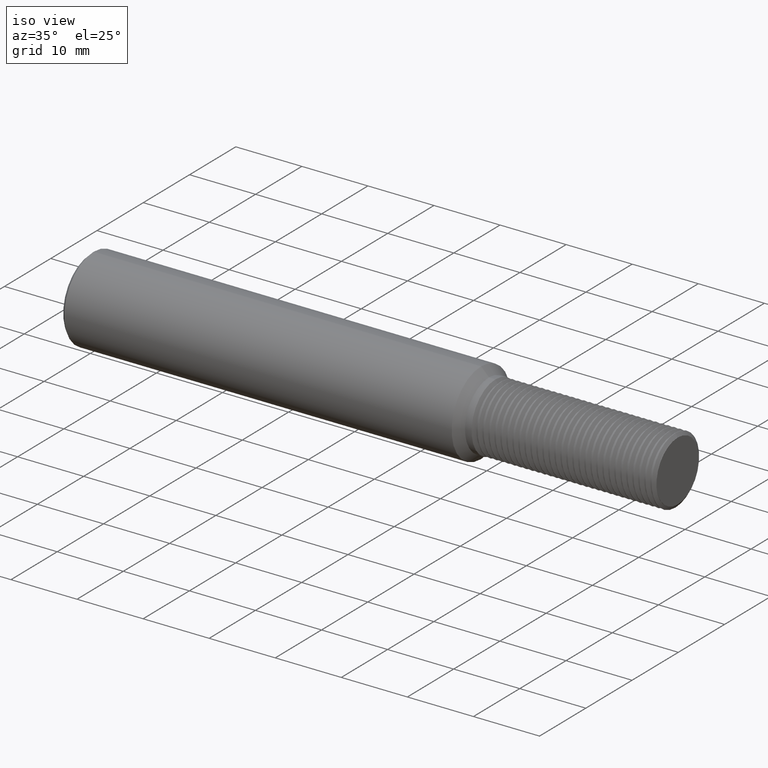
[diagram: clean part render]
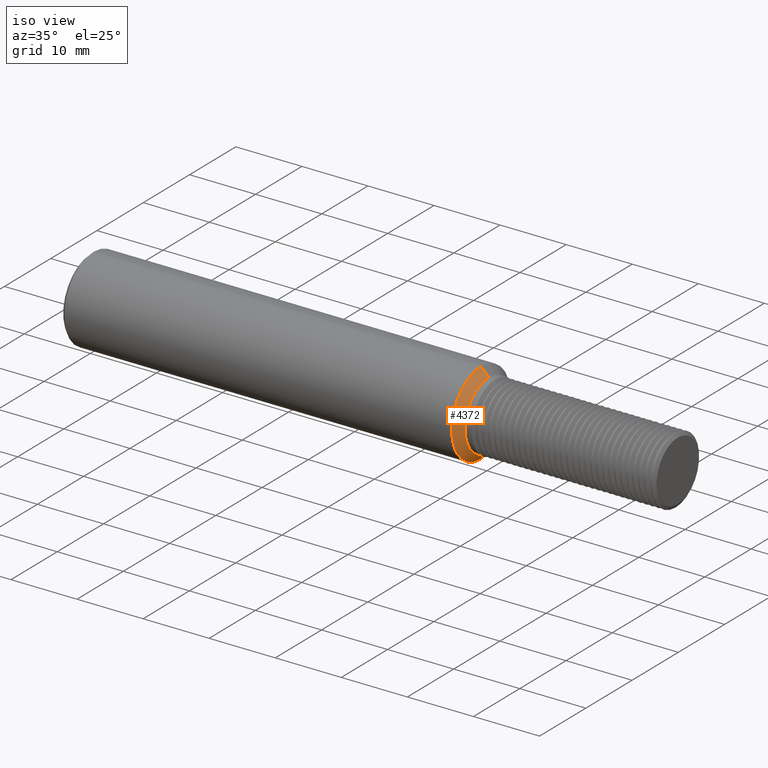
[diagram: same view with one face highlighted and labeled with its STEP entity id]
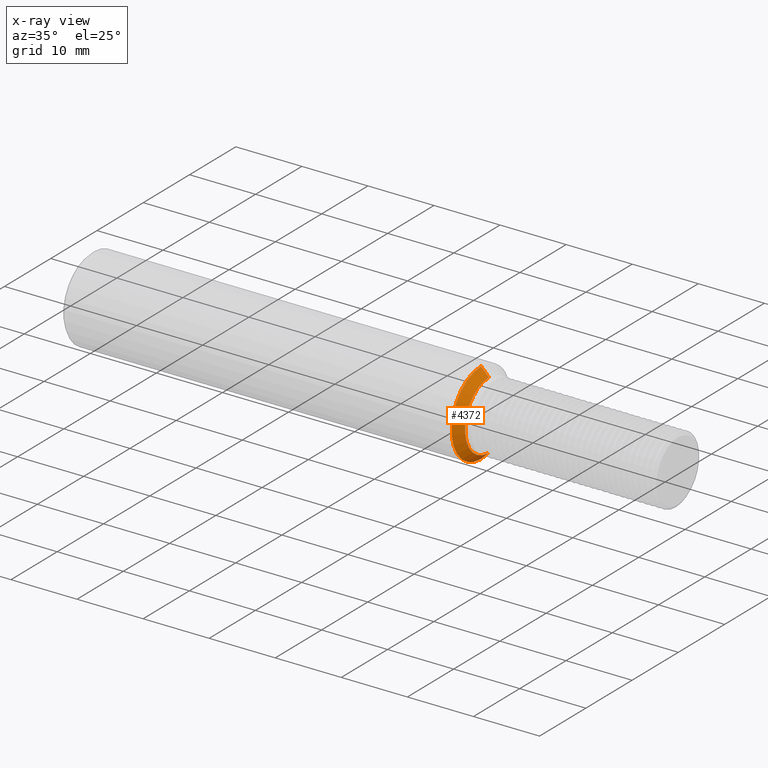
[diagram: x-ray of the same camera — body ghosted, the highlighted face saturated]
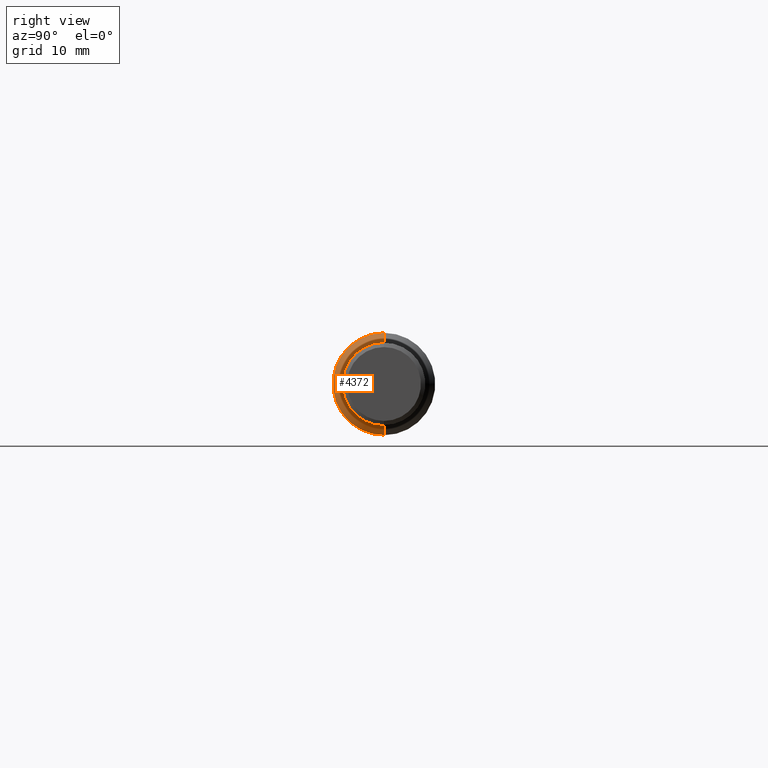
[diagram: same view with one face highlighted and labeled with its STEP entity id]
A machine part, iso view. The second image highlights one B-rep face of the part: STEP entity #4372.
The next image is the same camera in x-ray: the body ghosted, the highlighted face saturated — about 0% of this face is hidden behind the body in this view.
A second angle (right view) of the same face is appended — the face is thin or edge-on in the first view.
In plain terms, the highlighted conical surface has half-angle 45 deg.
Its self-contained STEP definition (entity closure, byte-faithful):
#2 = DIRECTION ( 'NONE',  ( -0.7071067811865462405, 0.000000000000000000, 0.7071067811865487940 ) ) ;
#23 = CARTESIAN_POINT ( 'NONE',  ( 2.374999999999999556, 0.000000000000000000, 0.000000000000000000 ) ) ;
#87 = ORIENTED_EDGE ( 'NONE', *, *, #442, .F. ) ;
#357 = DIRECTION ( 'NONE',  ( 0.000000000000000000, 0.000000000000000000, 1.000000000000000000 ) ) ;
#442 = EDGE_CURVE ( 'NONE', #2525, #1977, #6173, .T. ) ;
#548 = DIRECTION ( 'NONE',  ( 0.000000000000000000, 0.000000000000000000, 1.000000000000000000 ) ) ;
#772 = CARTESIAN_POINT ( 'NONE',  ( 2.374999999999999556, 0.000000000000000000, 0.000000000000000000 ) ) ;
#1028 = DIRECTION ( 'NONE',  ( -1.000000000000000000, -0.000000000000000000, -0.000000000000000000 ) ) ;
#1039 = VERTEX_POINT ( 'NONE', #4799 ) ;
#1046 = EDGE_CURVE ( 'NONE', #1977, #4791, #2523, .T. ) ;
#1158 = AXIS2_PLACEMENT_3D ( 'NONE', #772, #6225, #2828 ) ;
#1661 = CARTESIAN_POINT ( 'NONE',  ( 2.374999999999999556, 2.486033002269127361E-17, -0.2030000000000000138 ) ) ;
#1920 = EDGE_CURVE ( 'NONE', #1039, #4791, #1927, .T. ) ;
#1927 = LINE ( 'NONE', #4451, #6066 ) ;
#1977 = VERTEX_POINT ( 'NONE', #3556 ) ;
#1998 = AXIS2_PLACEMENT_3D ( 'NONE', #4278, #5706, #357 ) ;
#2523 = CIRCLE ( 'NONE', #1998, 0.2498499999999999888 ) ;
#2525 = VERTEX_POINT ( 'NONE', #5282 ) ;
#2828 = DIRECTION ( 'NONE',  ( 0.000000000000000000, 0.000000000000000000, 1.000000000000000000 ) ) ;
#3030 = CIRCLE ( 'NONE', #1158, 0.2030000000000000138 ) ;
#3058 = ORIENTED_EDGE ( 'NONE', *, *, #1920, .T. ) ;
#3075 = ORIENTED_EDGE ( 'NONE', *, *, #5912, .T. ) ;
#3111 = CONICAL_SURFACE ( 'NONE', #5803, 0.2030000000000000138, 0.7853981633974501664 ) ;
#3125 = DIRECTION ( 'NONE',  ( -0.7071067811865462405, 8.659560562354948882E-17, -0.7071067811865487940 ) ) ;
#3327 = ORIENTED_EDGE ( 'NONE', *, *, #1046, .F. ) ;
#3556 = CARTESIAN_POINT ( 'NONE',  ( 2.328149999999999942, 3.059780027669661931E-17, -0.2498499999999999888 ) ) ;
#3563 = CARTESIAN_POINT ( 'NONE',  ( 2.328149999999999942, 0.000000000000000000, 0.2498499999999999888 ) ) ;
#3859 = EDGE_LOOP ( 'NONE', ( #87, #3075, #3058, #3327 ) ) ;
#4278 = CARTESIAN_POINT ( 'NONE',  ( 2.328149999999999942, 0.000000000000000000, 0.000000000000000000 ) ) ;
#4372 = ADVANCED_FACE ( 'NONE', ( #4470 ), #3111, .T. ) ;
#4451 = CARTESIAN_POINT ( 'NONE',  ( 2.374999999999999556, 0.000000000000000000, 0.2030000000000000138 ) ) ;
#4470 = FACE_OUTER_BOUND ( 'NONE', #3859, .T. ) ;
#4791 = VERTEX_POINT ( 'NONE', #3563 ) ;
#4799 = CARTESIAN_POINT ( 'NONE',  ( 2.374999999999999556, 0.000000000000000000, 0.2030000000000000138 ) ) ;
#5282 = CARTESIAN_POINT ( 'NONE',  ( 2.374999999999999556, 2.772906514969394800E-17, -0.2030000000000000138 ) ) ;
#5706 = DIRECTION ( 'NONE',  ( -1.000000000000000000, -0.000000000000000000, -0.000000000000000000 ) ) ;
#5747 = VECTOR ( 'NONE', #3125, 39.37007874015748143 ) ;
#5803 = AXIS2_PLACEMENT_3D ( 'NONE', #23, #1028, #548 ) ;
#5912 = EDGE_CURVE ( 'NONE', #2525, #1039, #3030, .T. ) ;
#6066 = VECTOR ( 'NONE', #2, 39.37007874015748143 ) ;
#6173 = LINE ( 'NONE', #1661, #5747 ) ;
#6225 = DIRECTION ( 'NONE',  ( -1.000000000000000000, -0.000000000000000000, -0.000000000000000000 ) ) ;